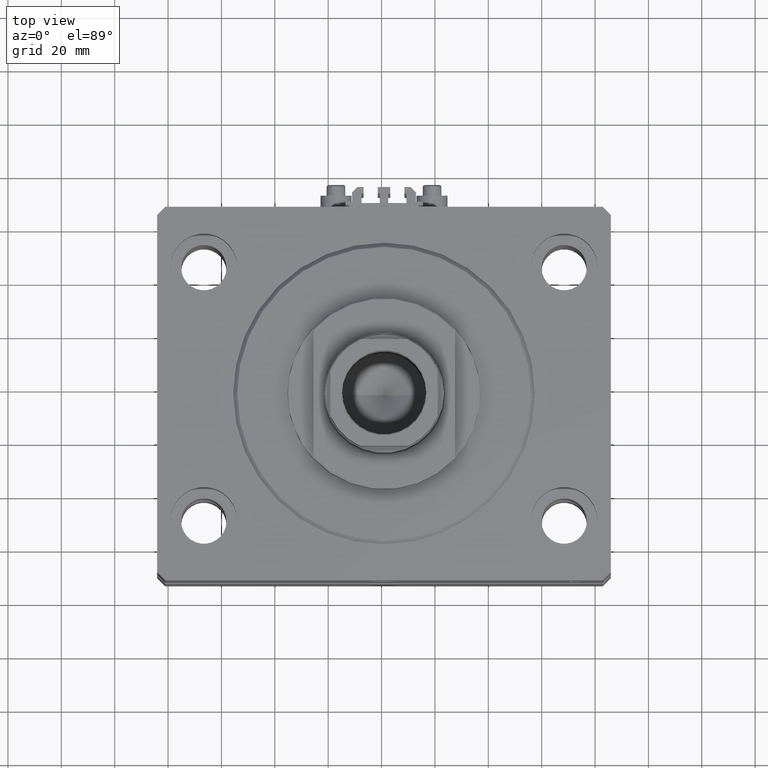
[diagram: clean part render]
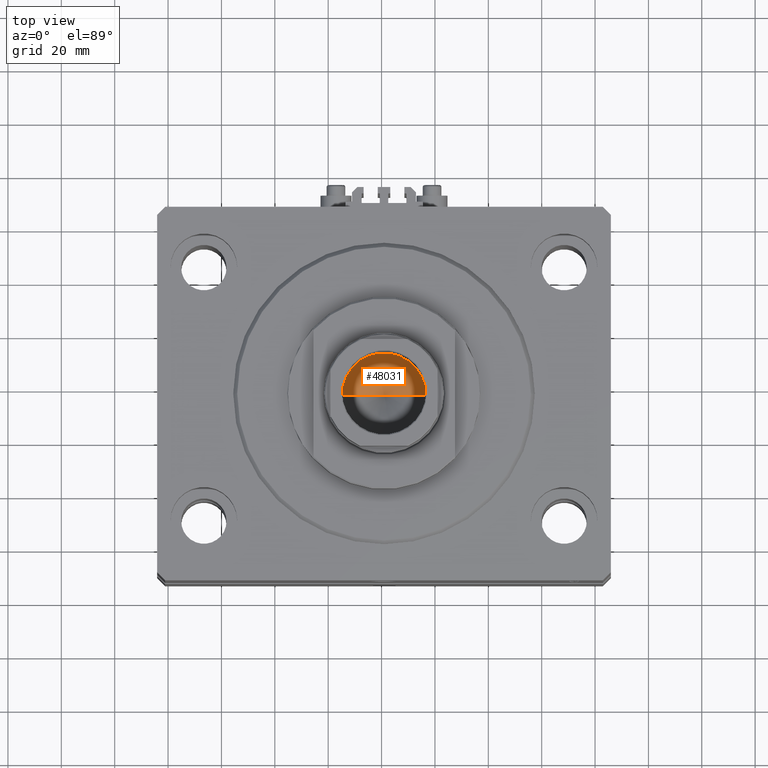
[diagram: same view with one face highlighted and labeled with its STEP entity id]
A machine part, top view. The second image highlights one B-rep face of the part: STEP entity #48031.
In plain terms, the highlighted conical surface has half-angle 59 deg.
Its self-contained STEP definition (entity closure, byte-faithful):
#596 = DIRECTION ( 'NONE',  ( -0.000000000000000000, -0.000000000000000000, 1.000000000000000000 ) ) ;
#598 = EDGE_LOOP ( 'NONE', ( #47939, #10767, #10605 ) ) ;
#5251 = CARTESIAN_POINT ( 'NONE',  ( -15.74999999999998934, 1.928818708657080161E-15, 71.10000000000002274 ) ) ;
#8611 = VECTOR ( 'NONE', #9290, 1000.000000000000000 ) ;
#9238 = EDGE_CURVE ( 'NONE', #21722, #35751, #17367, .T. ) ;
#9290 = DIRECTION ( 'NONE',  ( 0.8571673007021118895, 0.000000000000000000, 0.5150380749100549327 ) ) ;
#9554 = EDGE_CURVE ( 'NONE', #35751, #14206, #38345, .T. ) ;
#10605 = ORIENTED_EDGE ( 'NONE', *, *, #9554, .T. ) ;
#10767 = ORIENTED_EDGE ( 'NONE', *, *, #9238, .T. ) ;
#13397 = CARTESIAN_POINT ( 'NONE',  ( 0.000000000000000000, 0.000000000000000000, 71.10000000000002274 ) ) ;
#14009 = LINE ( 'NONE', #29669, #41189 ) ;
#14206 = VERTEX_POINT ( 'NONE', #5251 ) ;
#15055 = DIRECTION ( 'NONE',  ( 1.000000000000000000, 0.000000000000000000, 0.000000000000000000 ) ) ;
#17367 = LINE ( 'NONE', #20555, #8611 ) ;
#20555 = CARTESIAN_POINT ( 'NONE',  ( 15.74999999999998934, 0.000000000000000000, 71.10000000000002274 ) ) ;
#21131 = AXIS2_PLACEMENT_3D ( 'NONE', #13397, #46705, #43517 ) ;
#21722 = VERTEX_POINT ( 'NONE', #45011 ) ;
#26313 = FACE_OUTER_BOUND ( 'NONE', #598, .T. ) ;
#27857 = CARTESIAN_POINT ( 'NONE',  ( 15.74999999999998934, 0.000000000000000000, 71.10000000000002274 ) ) ;
#28981 = CONICAL_SURFACE ( 'NONE', #35229, 15.74999999999998934, 1.029744258676653645 ) ;
#29669 = CARTESIAN_POINT ( 'NONE',  ( -15.74999999999998934, 1.928818708657080161E-15, 71.10000000000002274 ) ) ;
#34552 = EDGE_CURVE ( 'NONE', #21722, #14206, #14009, .T. ) ;
#35229 = AXIS2_PLACEMENT_3D ( 'NONE', #41976, #596, #15055 ) ;
#35751 = VERTEX_POINT ( 'NONE', #27857 ) ;
#38345 = CIRCLE ( 'NONE', #21131, 15.74999999999998934 ) ;
#41189 = VECTOR ( 'NONE', #43891, 1000.000000000000000 ) ;
#41976 = CARTESIAN_POINT ( 'NONE',  ( 0.000000000000000000, 0.000000000000000000, 71.10000000000002274 ) ) ;
#43517 = DIRECTION ( 'NONE',  ( 1.000000000000000000, 0.000000000000000000, 0.000000000000000000 ) ) ;
#43891 = DIRECTION ( 'NONE',  ( -0.8571673007021118895, 1.049727191138618079E-16, 0.5150380749100549327 ) ) ;
#45011 = CARTESIAN_POINT ( 'NONE',  ( -1.480675244360640996E-14, 0.000000000000000000, 61.63644525031594412 ) ) ;
#46705 = DIRECTION ( 'NONE',  ( -0.000000000000000000, -0.000000000000000000, 1.000000000000000000 ) ) ;
#47939 = ORIENTED_EDGE ( 'NONE', *, *, #34552, .F. ) ;
#48031 = ADVANCED_FACE ( 'NONE', ( #26313 ), #28981, .F. ) ;